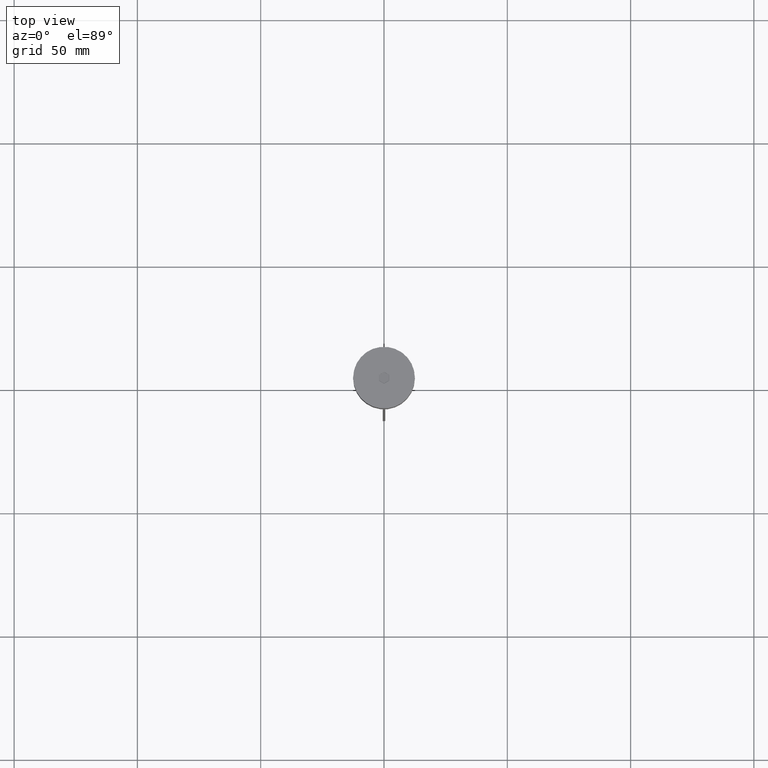
[diagram: clean part render]
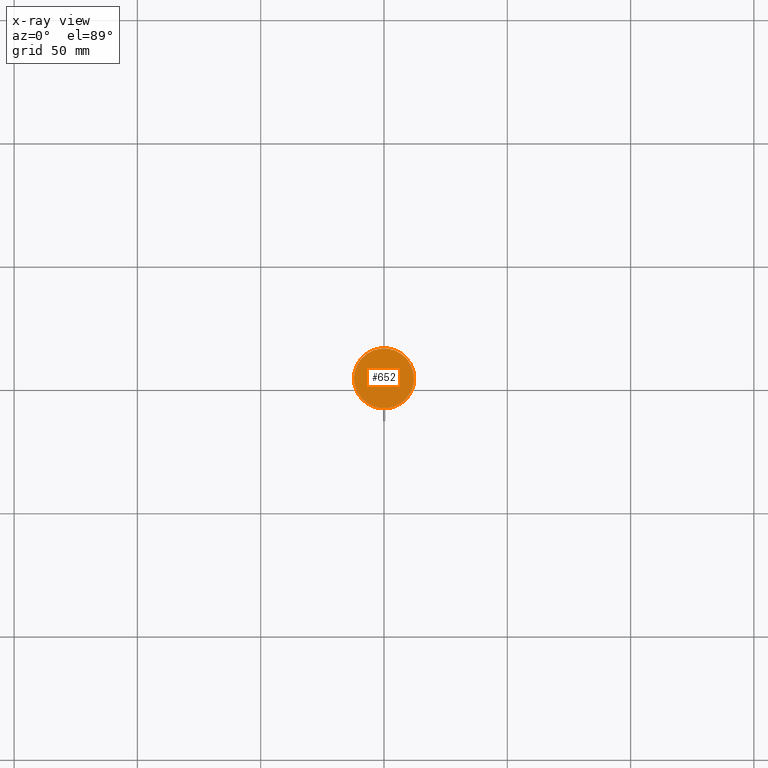
[diagram: x-ray — body ghosted, one internal face saturated and labeled with its STEP entity id]
A machine part, top view, then the same camera in x-ray: the body is ghosted and one INTERNAL B-rep face — a face not visible from any outside direction — is saturated and labeled: STEP entity #652.
In plain terms, the highlighted planar face has unit normal (0, 0, -1).
Its self-contained STEP definition (entity closure, byte-faithful):
#67 = DIRECTION ( 'NONE',  ( -1.000000000000000000, 0.000000000000000000, 0.000000000000000000 ) ) ;
#181 = CARTESIAN_POINT ( 'NONE',  ( 0.000000000000000000, 0.000000000000000000, -20.49999999999999645 ) ) ;
#293 = ORIENTED_EDGE ( 'NONE', *, *, #1721, .T. ) ;
#400 = CARTESIAN_POINT ( 'NONE',  ( 12.20000000000000639, 1.512438796946981880E-15, -20.49999999999999645 ) ) ;
#615 = CARTESIAN_POINT ( 'NONE',  ( -12.20000000000000639, 0.000000000000000000, -20.49999999999999645 ) ) ;
#652 = ADVANCED_FACE ( 'NONE', ( #1764 ), #1002, .F. ) ;
#745 = AXIS2_PLACEMENT_3D ( 'NONE', #1496, #1339, #67 ) ;
#1002 = PLANE ( 'NONE',  #1842 ) ;
#1106 = DIRECTION ( 'NONE',  ( -1.000000000000000000, 0.000000000000000000, 0.000000000000000000 ) ) ;
#1157 = ORIENTED_EDGE ( 'NONE', *, *, #1987, .T. ) ;
#1265 = EDGE_LOOP ( 'NONE', ( #1157, #293 ) ) ;
#1294 = DIRECTION ( 'NONE',  ( 0.000000000000000000, 0.000000000000000000, -1.000000000000000000 ) ) ;
#1339 = DIRECTION ( 'NONE',  ( -0.000000000000000000, -0.000000000000000000, 1.000000000000000000 ) ) ;
#1401 = VERTEX_POINT ( 'NONE', #615 ) ;
#1496 = CARTESIAN_POINT ( 'NONE',  ( 0.000000000000000000, 0.000000000000000000, -20.49999999999999645 ) ) ;
#1611 = VERTEX_POINT ( 'NONE', #400 ) ;
#1719 = DIRECTION ( 'NONE',  ( -0.000000000000000000, -0.000000000000000000, 1.000000000000000000 ) ) ;
#1721 = EDGE_CURVE ( 'NONE', #1611, #1401, #1772, .T. ) ;
#1737 = CIRCLE ( 'NONE', #745, 12.20000000000000639 ) ;
#1764 = FACE_OUTER_BOUND ( 'NONE', #1265, .T. ) ;
#1772 = CIRCLE ( 'NONE', #1946, 12.20000000000000639 ) ;
#1842 = AXIS2_PLACEMENT_3D ( 'NONE', #181, #1294, #1887 ) ;
#1887 = DIRECTION ( 'NONE',  ( -1.000000000000000000, 0.000000000000000000, -0.000000000000000000 ) ) ;
#1946 = AXIS2_PLACEMENT_3D ( 'NONE', #2024, #1719, #1106 ) ;
#1987 = EDGE_CURVE ( 'NONE', #1401, #1611, #1737, .T. ) ;
#2024 = CARTESIAN_POINT ( 'NONE',  ( 0.000000000000000000, 0.000000000000000000, -20.49999999999999645 ) ) ;